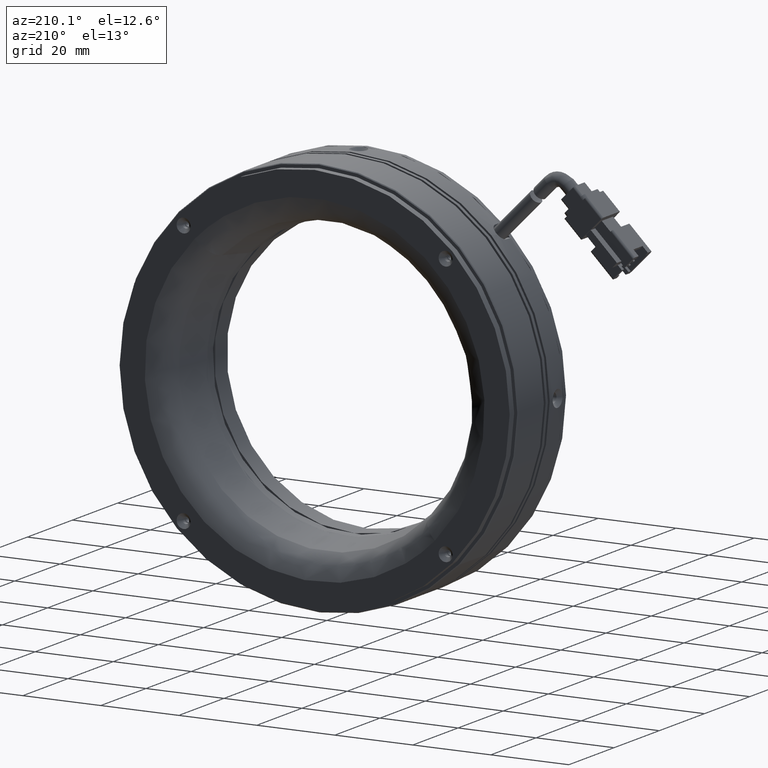
[diagram: clean part render]
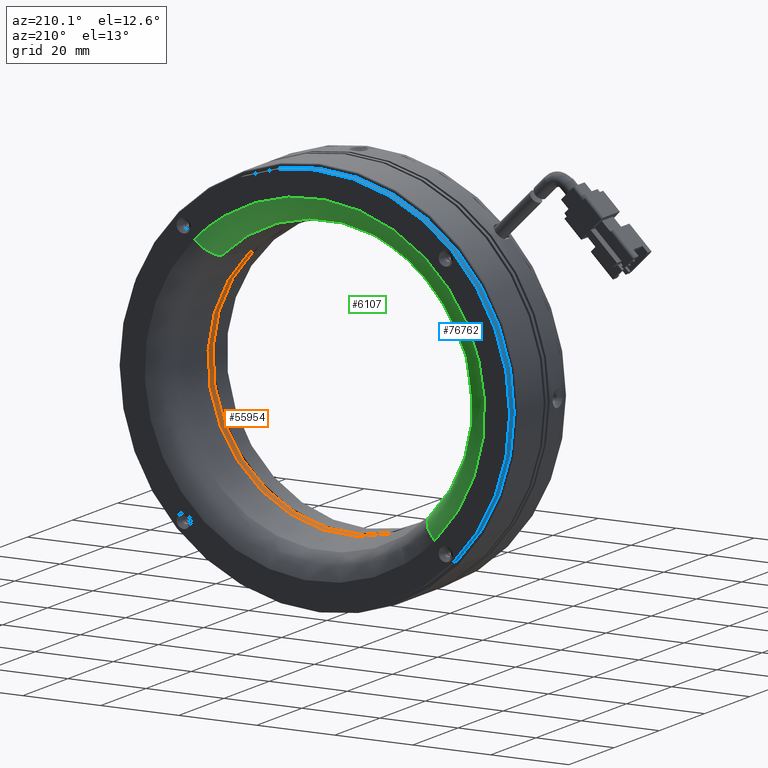
[diagram: same view with three faces highlighted in distinct colors, each labeled with its STEP entity id]
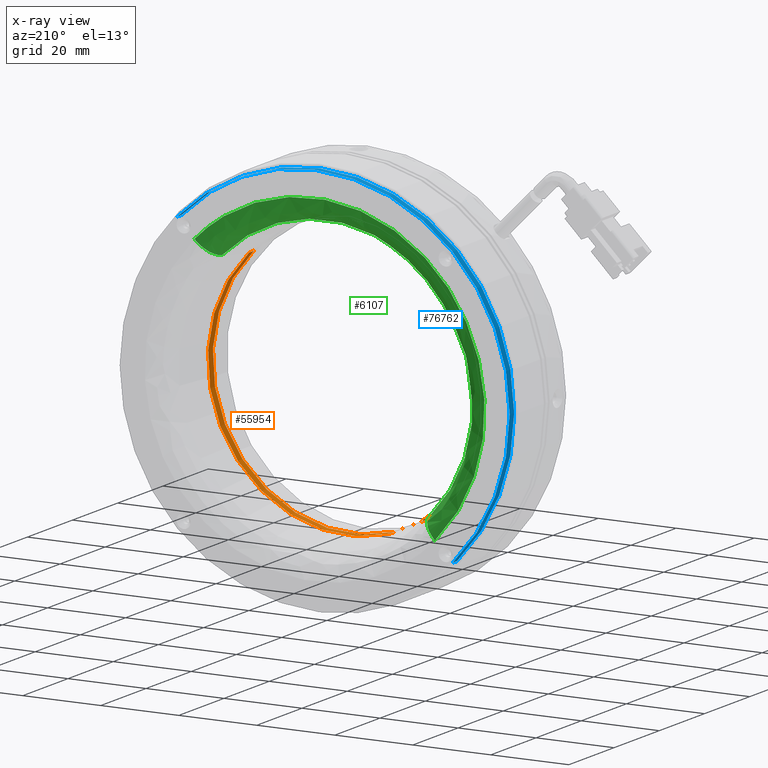
[diagram: x-ray of the same camera — body ghosted, the three highlighted faces saturated]
A machine part, auxiliary view with three faces highlighted in distinct colors.
The next image is the same camera in x-ray (body ghosted, the three faces saturated) — at least one of them is partly hidden behind the body in this view.
Their STEP definitions:

[orange] entity #55954 — the highlighted cylindrical surface (partial cylindrical patch) has radius 36 mm, axis along (0, -1, 0).
#5140 = EDGE_CURVE ( 'NONE', #35253, #12262, #75231, .T. ) ;
#7737 = ORIENTED_EDGE ( 'NONE', *, *, #26094, .T. ) ;
#9761 = VECTOR ( 'NONE', #88419, 1000.000000000000000 ) ;
#12023 = LINE ( 'NONE', #81126, #9761 ) ;
#12262 = VERTEX_POINT ( 'NONE', #51697 ) ;
#16374 = CARTESIAN_POINT ( 'NONE',  ( 3.317172100084941600E-013, -0.1211342174009281700, 2.767164565455106200E-015 ) ) ;
#16449 = DIRECTION ( 'NONE',  ( 5.593399160027876600E-020, -1.000000000000000000, 5.741257191681600800E-020 ) ) ;
#16678 = DIRECTION ( 'NONE',  ( 5.593399160027876600E-020, -1.000000000000000000, 5.741257191681600800E-020 ) ) ;
#17266 = VECTOR ( 'NONE', #53457, 1000.000000000000000 ) ;
#18433 = CIRCLE ( 'NONE', #88130, 35.99999999999999300 ) ;
#26094 = EDGE_CURVE ( 'NONE', #34099, #12262, #46889, .T. ) ;
#27993 = CYLINDRICAL_SURFACE ( 'NONE', #90481, 36.00000000000000700 ) ;
#29278 = CARTESIAN_POINT ( 'NONE',  ( -25.45584412271541200, 10.53720842838891500, -25.45584412271566400 ) ) ;
#30191 = DIRECTION ( 'NONE',  ( 5.593399160027876600E-020, -1.000000000000000000, 5.741257191681600800E-020 ) ) ;
#34099 = VERTEX_POINT ( 'NONE', #42088 ) ;
#35208 = CARTESIAN_POINT ( 'NONE',  ( 25.45584412271608300, 10.53720842838891500, 25.45584412271566800 ) ) ;
#35253 = VERTEX_POINT ( 'NONE', #35208 ) ;
#37154 = FACE_OUTER_BOUND ( 'NONE', #91398, .T. ) ;
#42088 = CARTESIAN_POINT ( 'NONE',  ( -25.45584412271541900, 8.407147174518511800, -25.45584412271567100 ) ) ;
#45966 = DIRECTION ( 'NONE',  ( -0.7071067811865485700, 0.0000000000000000000, -0.7071067811865463500 ) ) ;
#46222 = ORIENTED_EDGE ( 'NONE', *, *, #51117, .T. ) ;
#46889 = CIRCLE ( 'NONE', #59892, 36.00000000000000700 ) ;
#49833 = EDGE_CURVE ( 'NONE', #60079, #35253, #18433, .T. ) ;
#51117 = EDGE_CURVE ( 'NONE', #60079, #34099, #12023, .T. ) ;
#51697 = CARTESIAN_POINT ( 'NONE',  ( 25.45584412271609100, 8.407147174518511800, 25.45584412271567500 ) ) ;
#53457 = DIRECTION ( 'NONE',  ( 5.593399160027876600E-020, -1.000000000000000000, 5.741257191681600800E-020 ) ) ;
#55954 = ADVANCED_FACE ( 'NONE', ( #37154 ), #27993, .F. ) ;
#59892 = AXIS2_PLACEMENT_3D ( 'NONE', #60000, #16449, #67247 ) ;
#60000 = CARTESIAN_POINT ( 'NONE',  ( 3.317167329876744300E-013, 8.407147174518511800, 2.766674934886365700E-015 ) ) ;
#60079 = VERTEX_POINT ( 'NONE', #29278 ) ;
#61893 = ORIENTED_EDGE ( 'NONE', *, *, #5140, .F. ) ;
#67247 = DIRECTION ( 'NONE',  ( -0.7071067811865485700, 0.0000000000000000000, -0.7071067811865463500 ) ) ;
#73600 = CARTESIAN_POINT ( 'NONE',  ( 3.317166138448461200E-013, 10.53720842838891500, 2.766552642591440700E-015 ) ) ;
#75231 = LINE ( 'NONE', #89909, #17266 ) ;
#80892 = DIRECTION ( 'NONE',  ( -0.7071067811865486800, 0.0000000000000000000, -0.7071067811865464600 ) ) ;
#81126 = CARTESIAN_POINT ( 'NONE',  ( -25.45584412271541900, -0.1211342174009281700, -25.45584412271567100 ) ) ;
#83610 = ORIENTED_EDGE ( 'NONE', *, *, #49833, .F. ) ;
#88130 = AXIS2_PLACEMENT_3D ( 'NONE', #73600, #30191, #80892 ) ;
#88419 = DIRECTION ( 'NONE',  ( 5.593399160027876600E-020, -1.000000000000000000, 5.741257191681600800E-020 ) ) ;
#89909 = CARTESIAN_POINT ( 'NONE',  ( 25.45584412271609100, -0.1211342174009281700, 25.45584412271567500 ) ) ;
#90481 = AXIS2_PLACEMENT_3D ( 'NONE', #16374, #16678, #45966 ) ;
#91398 = EDGE_LOOP ( 'NONE', ( #61893, #83610, #46222, #7737 ) ) ;

[blue] entity #76762 — the highlighted cylindrical surface (partial cylindrical patch) has radius 50 mm, axis along (0, -1, 0).
#69 = DIRECTION ( 'NONE',  ( -5.593399160027876600E-020, 1.000000000000000000, -5.741257191681600800E-020 ) ) ;
#4921 = EDGE_CURVE ( 'NONE', #83680, #71223, #32247, .T. ) ;
#5052 = VERTEX_POINT ( 'NONE', #81349 ) ;
#7166 = DIRECTION ( 'NONE',  ( 5.593399160027876600E-020, -1.000000000000000000, 5.741257191681600800E-020 ) ) ;
#13513 = LINE ( 'NONE', #78108, #30716 ) ;
#20358 = EDGE_LOOP ( 'NONE', ( #63190, #48335, #34533, #69443 ) ) ;
#24893 = DIRECTION ( 'NONE',  ( -0.7071067811865485700, 0.0000000000000000000, -0.7071067811865464600 ) ) ;
#26063 = VERTEX_POINT ( 'NONE', #38159 ) ;
#29242 = LINE ( 'NONE', #46483, #65497 ) ;
#30716 = VECTOR ( 'NONE', #63897, 1000.000000000000000 ) ;
#31963 = DIRECTION ( 'NONE',  ( 5.593399160027876600E-020, -1.000000000000000000, 5.741257191681600800E-020 ) ) ;
#32247 = CIRCLE ( 'NONE', #76975, 50.00000000000000700 ) ;
#34533 = ORIENTED_EDGE ( 'NONE', *, *, #35749, .T. ) ;
#35749 = EDGE_CURVE ( 'NONE', #5052, #83680, #13513, .T. ) ;
#38054 = EDGE_CURVE ( 'NONE', #26063, #71223, #29242, .T. ) ;
#38159 = CARTESIAN_POINT ( 'NONE',  ( 35.35533905932776800, 25.40714717451851700, 35.35533905932732100 ) ) ;
#39854 = DIRECTION ( 'NONE',  ( 5.593399160027876600E-020, -1.000000000000000000, 5.741257191681600800E-020 ) ) ;
#43651 = CARTESIAN_POINT ( 'NONE',  ( 3.317158939778003900E-013, 23.40714717451851000, 2.765813746307613900E-015 ) ) ;
#45854 = CARTESIAN_POINT ( 'NONE',  ( -35.35533905932710000, 23.40714717451851000, -35.35533905932732800 ) ) ;
#46483 = CARTESIAN_POINT ( 'NONE',  ( 35.35533905932776800, -0.1211342174009281700, 35.35533905932732100 ) ) ;
#47244 = CIRCLE ( 'NONE', #56228, 50.00000000000000700 ) ;
#47741 = CYLINDRICAL_SURFACE ( 'NONE', #48432, 50.00000000000000700 ) ;
#48335 = ORIENTED_EDGE ( 'NONE', *, *, #75967, .T. ) ;
#48432 = AXIS2_PLACEMENT_3D ( 'NONE', #89936, #31963, #24893 ) ;
#50752 = CARTESIAN_POINT ( 'NONE',  ( 3.317157821098172500E-013, 25.40714717451851700, 2.765698921163779800E-015 ) ) ;
#50930 = DIRECTION ( 'NONE',  ( -0.7071067811865485700, 0.0000000000000000000, -0.7071067811865464600 ) ) ;
#56228 = AXIS2_PLACEMENT_3D ( 'NONE', #50752, #7166, #58047 ) ;
#56834 = FACE_OUTER_BOUND ( 'NONE', #20358, .T. ) ;
#58047 = DIRECTION ( 'NONE',  ( -0.7071067811865485700, 0.0000000000000000000, -0.7071067811865464600 ) ) ;
#63190 = ORIENTED_EDGE ( 'NONE', *, *, #38054, .F. ) ;
#63897 = DIRECTION ( 'NONE',  ( 5.593399160027876600E-020, -1.000000000000000000, 5.741257191681600800E-020 ) ) ;
#65497 = VECTOR ( 'NONE', #39854, 1000.000000000000000 ) ;
#69443 = ORIENTED_EDGE ( 'NONE', *, *, #4921, .T. ) ;
#71223 = VERTEX_POINT ( 'NONE', #90142 ) ;
#75967 = EDGE_CURVE ( 'NONE', #26063, #5052, #47244, .T. ) ;
#76762 = ADVANCED_FACE ( 'NONE', ( #56834 ), #47741, .T. ) ;
#76975 = AXIS2_PLACEMENT_3D ( 'NONE', #43651, #69, #50930 ) ;
#78108 = CARTESIAN_POINT ( 'NONE',  ( -35.35533905932710000, -0.1211342174009281700, -35.35533905932732800 ) ) ;
#81349 = CARTESIAN_POINT ( 'NONE',  ( -35.35533905932710000, 25.40714717451851700, -35.35533905932732800 ) ) ;
#83680 = VERTEX_POINT ( 'NONE', #45854 ) ;
#89936 = CARTESIAN_POINT ( 'NONE',  ( 3.317172100084941600E-013, -0.1211342174009281700, 2.767164565455106200E-015 ) ) ;
#90142 = CARTESIAN_POINT ( 'NONE',  ( 35.35533905932776800, 23.40714717451851000, 35.35533905932732100 ) ) ;

[green] entity #6107 — the highlighted face is a freeform B-spline surface patch.
#1178 = CARTESIAN_POINT ( 'NONE',  ( 3.317160594367525600E-013, 20.44903624052007300, 2.765983579064349600E-015 ) ) ;
#2197 = ORIENTED_EDGE ( 'NONE', *, *, #16803, .T. ) ;
#5168 = AXIS2_PLACEMENT_3D ( 'NONE', #8823, #59723, #16179 ) ;
#5525 = CARTESIAN_POINT ( 'NONE',  ( -26.64803762780585200, 20.44903624052007300, 79.94411288341899500 ) ) ;
#6107 = ADVANCED_FACE ( 'NONE', ( #40389 ), #88510, .T. ) ;
#7791 = CIRCLE ( 'NONE', #5168, 6.000000000000000900 ) ;
#8436 = DIRECTION ( 'NONE',  ( -0.7071067811865485700, 0.0000000000000000000, -0.7071067811865465700 ) ) ;
#8823 = CARTESIAN_POINT ( 'NONE',  ( -30.82622306972614700, 19.40714717451851000, -30.82622306972638900 ) ) ;
#12512 = CARTESIAN_POINT ( 'NONE',  ( -92.47866920917891800, 25.40714717451851000, 30.82622306972658800 ) ) ;
#14118 = CARTESIAN_POINT ( 'NONE',  ( -26.64803762780603300, 20.44903624052007300, -26.64803762780627100 ) ) ;
#16179 = DIRECTION ( 'NONE',  ( -0.7071067811865483500, 0.0000000000000000000, -0.7071067811865465700 ) ) ;
#16803 = EDGE_CURVE ( 'NONE', #73497, #24873, #23950, .T. ) ;
#17399 = AXIS2_PLACEMENT_3D ( 'NONE', #78042, #34719, #85372 ) ;
#19870 = CARTESIAN_POINT ( 'NONE',  ( 28.67217794054173700, 25.40714717451851000, 28.67217794054131400 ) ) ;
#22288 = CARTESIAN_POINT ( 'NONE',  ( 30.82622306972681900, 25.40714717451851000, 30.82622306972639200 ) ) ;
#23950 = CIRCLE ( 'NONE', #25166, 37.68601622387225100 ) ;
#24873 = VERTEX_POINT ( 'NONE', #78861 ) ;
#25166 = AXIS2_PLACEMENT_3D ( 'NONE', #1178, #52035, #8436 ) ;
#27237 = CARTESIAN_POINT ( 'NONE',  ( -86.01653382162366800, 25.40714717451850600, 28.67217794054149800 ) ) ;
#32660 = EDGE_CURVE ( 'NONE', #48440, #58769, #79623, .T. ) ;
#34595 = CARTESIAN_POINT ( 'NONE',  ( 27.02208363910200000, 23.44903624052008000, 27.02208363910159200 ) ) ;
#34719 = DIRECTION ( 'NONE',  ( -0.7071067811865463500, 1.045514168352555100E-021, 0.7071067811865486800 ) ) ;
#40389 = FACE_OUTER_BOUND ( 'NONE', #64596, .T. ) ;
#41085 = ORIENTED_EDGE ( 'NONE', *, *, #81672, .T. ) ;
#41846 = CARTESIAN_POINT ( 'NONE',  ( -81.06625091730448700, 23.44903624052008300, 27.02208363910174800 ) ) ;
#44565 = CARTESIAN_POINT ( 'NONE',  ( 30.82622306972681900, 25.40714717451851000, 30.82622306972639200 ) ) ;
#47601 = ORIENTED_EDGE ( 'NONE', *, *, #32660, .T. ) ;
#48440 = VERTEX_POINT ( 'NONE', #69454 ) ;
#49124 = CARTESIAN_POINT ( 'NONE',  ( 26.64803762780669100, 20.44903624052007300, 26.64803762780628200 ) ) ;
#52035 = DIRECTION ( 'NONE',  ( 5.593399160027876600E-020, -1.000000000000000000, 5.741257191681600800E-020 ) ) ;
#52805 = CIRCLE ( 'NONE', #17399, 5.999999999999998200 ) ;
#55361 = EDGE_CURVE ( 'NONE', #48440, #24873, #7791, .T. ) ;
#56092 = CARTESIAN_POINT ( 'NONE',  ( -30.82622306972594800, 25.40714717451851000, 92.47866920917935800 ) ) ;
#56418 = CARTESIAN_POINT ( 'NONE',  ( -79.94411288341858300, 20.44903624052007300, 26.64803762780644200 ) ) ;
#58769 = VERTEX_POINT ( 'NONE', #22288 ) ;
#59723 = DIRECTION ( 'NONE',  ( 0.7071067811865464600, -1.045514168352553600E-021, -0.7071067811865485700 ) ) ;
#63385 = CARTESIAN_POINT ( 'NONE',  ( -30.82622306972615800, 25.40714717451851400, -30.82622306972638500 ) ) ;
#64596 = EDGE_LOOP ( 'NONE', ( #47601, #41085, #2197, #92915 ) ) ;
#65766 = CARTESIAN_POINT ( 'NONE',  ( -92.47866920917891800, 25.40714717451852100, 30.82622306972657400 ) ) ;
#69454 = CARTESIAN_POINT ( 'NONE',  ( -30.82622306972614700, 25.40714717451851000, -30.82622306972638900 ) ) ;
#70679 = CARTESIAN_POINT ( 'NONE',  ( -28.67217794054088000, 25.40714717451850600, 86.01653382162410800 ) ) ;
#73001 = CARTESIAN_POINT ( 'NONE',  ( 26.64803762780669100, 20.44903624052007300, 26.64803762780628200 ) ) ;
#73497 = VERTEX_POINT ( 'NONE', #73001 ) ;
#77916 = CARTESIAN_POINT ( 'NONE',  ( -28.67217794054107600, 25.40714717451851000, -28.67217794054130300 ) ) ;
#78042 = CARTESIAN_POINT ( 'NONE',  ( 30.82622306972681500, 19.40714717451851000, 30.82622306972639200 ) ) ;
#78861 = CARTESIAN_POINT ( 'NONE',  ( -26.64803762780602300, 20.44903624052007300, -26.64803762780628200 ) ) ;
#79623 =( BOUNDED_CURVE ( )  B_SPLINE_CURVE ( 3, ( #87966, #65766, #80670, #44565 ),
 .UNSPECIFIED., .F., .F. ) 
 B_SPLINE_CURVE_WITH_KNOTS ( ( 4, 4 ),
 ( 0.0000000000000000000, 1.000000000000000000 ),
 .UNSPECIFIED. ) 
 CURVE ( )  GEOMETRIC_REPRESENTATION_ITEM ( )  RATIONAL_B_SPLINE_CURVE ( ( 1.000000000000000000, 0.3333333333333333700, 0.3333333333333333700, 1.000000000000000000 ) ) 
 REPRESENTATION_ITEM ( '' )  );
#80670 = CARTESIAN_POINT ( 'NONE',  ( -30.82622306972595500, 25.40714717451852100, 92.47866920917935800 ) ) ;
#81672 = EDGE_CURVE ( 'NONE', #58769, #73497, #52805, .T. ) ;
#84303 = CARTESIAN_POINT ( 'NONE',  ( 30.82622306972681900, 25.40714717451851400, 30.82622306972639600 ) ) ;
#85240 = CARTESIAN_POINT ( 'NONE',  ( -27.02208363910116200, 23.44903624052008300, 81.06625091730488500 ) ) ;
#85372 = DIRECTION ( 'NONE',  ( 0.7071067811865486800, 0.0000000000000000000, 0.7071067811865463500 ) ) ;
#87966 = CARTESIAN_POINT ( 'NONE',  ( -30.82622306972614700, 25.40714717451851000, -30.82622306972638900 ) ) ;
#88510 =( BOUNDED_SURFACE ( )  B_SPLINE_SURFACE ( 3, 3, ( 
 ( #84303, #56092, #12512, #63385 ),
 ( #19870, #70679, #27237, #77916 ),
 ( #34595, #85240, #41846, #92586 ),
 ( #49124, #5525, #56418, #14118 ) ),
 .UNSPECIFIED., .F., .F., .F. ) 
 B_SPLINE_SURFACE_WITH_KNOTS ( ( 4, 4 ),
 ( 4, 4 ),
 ( 0.0000000000000000000, 1.000000000000000000 ),
 ( 0.0000000000000000000, 1.000000000000000000 ),
 .UNSPECIFIED. ) 
 GEOMETRIC_REPRESENTATION_ITEM ( )  RATIONAL_B_SPLINE_SURFACE ( (
 ( 1.000000000000000000, 0.3333333333333334300, 0.3333333333333334300, 1.000000000000000000),
 ( 0.8440296287459846400, 0.2813432095819949400, 0.2813432095819949400, 0.8440296287459846400),
 ( 0.8440296287459846400, 0.2813432095819949400, 0.2813432095819949400, 0.8440296287459846400),
 ( 1.000000000000000000, 0.3333333333333334300, 0.3333333333333334300, 1.000000000000000000) ) ) 
 REPRESENTATION_ITEM ( '' )  SURFACE ( )  );
#92586 = CARTESIAN_POINT ( 'NONE',  ( -27.02208363910133600, 23.44903624052008000, -27.02208363910157700 ) ) ;
#92915 = ORIENTED_EDGE ( 'NONE', *, *, #55361, .F. ) ;